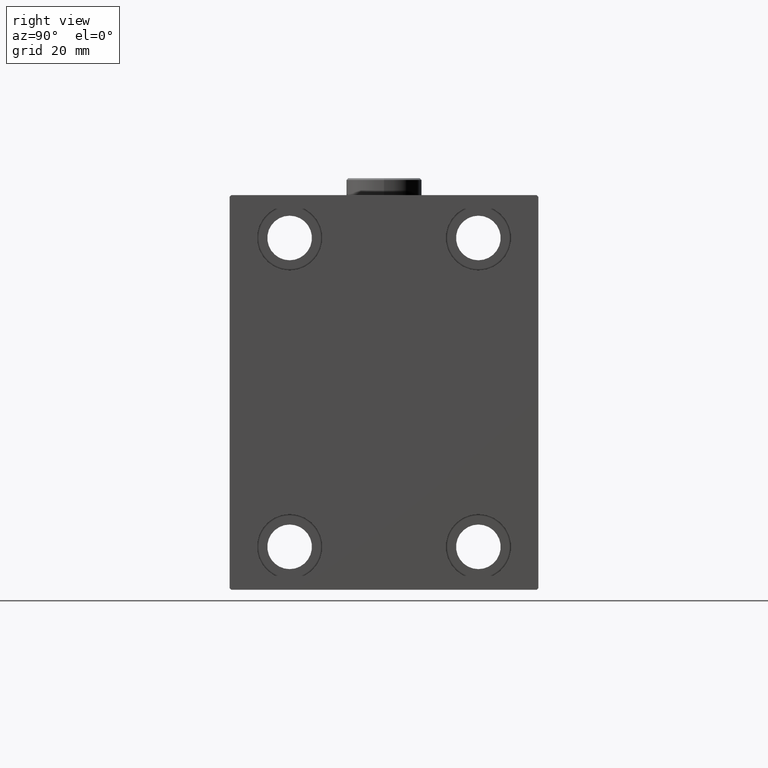
[diagram: clean part render]
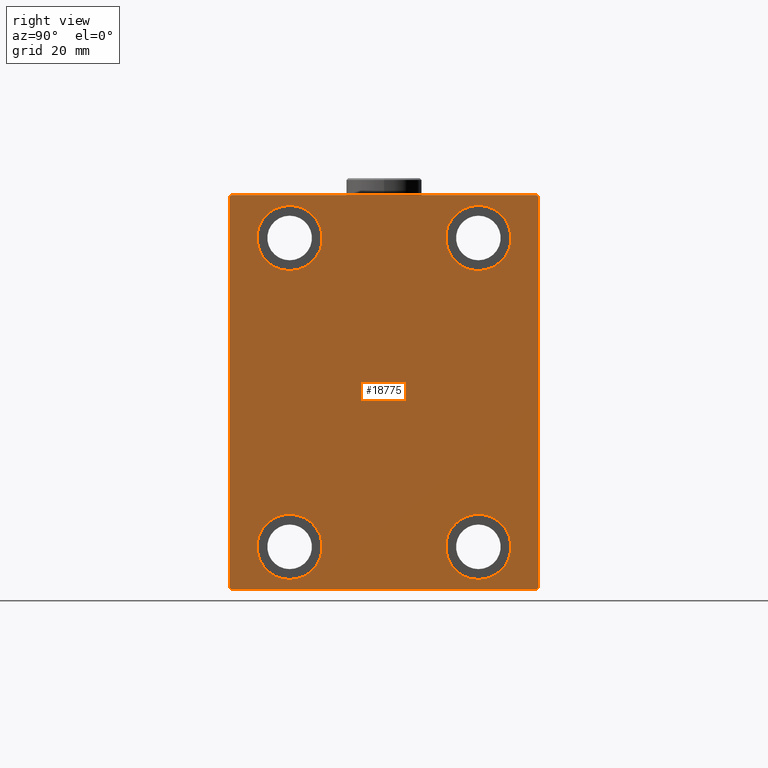
[diagram: same view with one face highlighted and labeled with its STEP entity id]
A machine part, right view. The second image highlights one B-rep face of the part: STEP entity #18775.
In plain terms, the highlighted planar face has unit normal (1, 0, 0).
Its self-contained STEP definition (entity closure, byte-faithful):
#37 = VERTEX_POINT ( 'NONE', #13288 ) ;
#253 = CARTESIAN_POINT ( 'NONE',  ( 138.0000000000000000, -27.50000000000000000, -44.99999999999998579 ) ) ;
#520 = DIRECTION ( 'NONE',  ( 0.000000000000000000, 0.000000000000000000, 1.000000000000000000 ) ) ;
#791 = VECTOR ( 'NONE', #12509, 1000.000000000000000 ) ;
#868 = EDGE_LOOP ( 'NONE', ( #32442, #12529, #12258, #16392, #17439, #33265, #3515, #4741 ) ) ;
#886 = CARTESIAN_POINT ( 'NONE',  ( 138.0000000000000000, -27.49999999999998934, 35.50000000000000711 ) ) ;
#1042 = EDGE_CURVE ( 'NONE', #5212, #41044, #6655, .T. ) ;
#1160 = EDGE_CURVE ( 'NONE', #10815, #37, #5426, .T. ) ;
#1295 = CARTESIAN_POINT ( 'NONE',  ( 138.0000000000000000, 0.000000000000000000, 0.000000000000000000 ) ) ;
#1320 = DIRECTION ( 'NONE',  ( -0.000000000000000000, 0.7071067811865474617, 0.7071067811865474617 ) ) ;
#1646 = CARTESIAN_POINT ( 'NONE',  ( 138.0000000000000000, -27.49999999999998934, 45.00000000000000711 ) ) ;
#1663 = CARTESIAN_POINT ( 'NONE',  ( 138.0000000000000000, -45.00000000000000000, 57.00000000000002132 ) ) ;
#2193 = CARTESIAN_POINT ( 'NONE',  ( 138.0000000000000000, -45.00000000000000000, -57.50000000000000711 ) ) ;
#2242 = AXIS2_PLACEMENT_3D ( 'NONE', #1646, #33478, #5780 ) ;
#2808 = DIRECTION ( 'NONE',  ( -1.000000000000000000, -0.000000000000000000, -0.000000000000000000 ) ) ;
#2958 = ORIENTED_EDGE ( 'NONE', *, *, #3651, .T. ) ;
#3515 = ORIENTED_EDGE ( 'NONE', *, *, #19408, .T. ) ;
#3651 = EDGE_CURVE ( 'NONE', #42472, #26517, #40379, .T. ) ;
#3703 = DIRECTION ( 'NONE',  ( -0.000000000000000000, -0.7071067811865474617, 0.7071067811865474617 ) ) ;
#4320 = DIRECTION ( 'NONE',  ( 0.000000000000000000, -1.000000000000000000, -1.541976423090495387E-16 ) ) ;
#4432 = CARTESIAN_POINT ( 'NONE',  ( 138.0000000000000000, -51.00000000000000000, -51.00000000000000000 ) ) ;
#4733 = VERTEX_POINT ( 'NONE', #7481 ) ;
#4741 = ORIENTED_EDGE ( 'NONE', *, *, #12905, .T. ) ;
#4891 = CARTESIAN_POINT ( 'NONE',  ( 138.0000000000000000, 27.49999999999998934, -35.49999999999998579 ) ) ;
#4967 = FACE_OUTER_BOUND ( 'NONE', #868, .T. ) ;
#5212 = VERTEX_POINT ( 'NONE', #5292 ) ;
#5292 = CARTESIAN_POINT ( 'NONE',  ( 138.0000000000000000, -27.49999999999998934, 54.50000000000000711 ) ) ;
#5353 = VECTOR ( 'NONE', #14974, 1000.000000000000114 ) ;
#5426 = LINE ( 'NONE', #2193, #791 ) ;
#5780 = DIRECTION ( 'NONE',  ( 0.000000000000000000, 0.000000000000000000, 1.000000000000000000 ) ) ;
#5947 = LINE ( 'NONE', #29763, #18843 ) ;
#5993 = AXIS2_PLACEMENT_3D ( 'NONE', #23669, #2808, #9918 ) ;
#6216 = VECTOR ( 'NONE', #1320, 1000.000000000000114 ) ;
#6655 = CIRCLE ( 'NONE', #26409, 9.500000000000001776 ) ;
#7481 = CARTESIAN_POINT ( 'NONE',  ( 138.0000000000000000, -27.50000000000000000, -35.49999999999998579 ) ) ;
#7945 = FACE_BOUND ( 'NONE', #21491, .T. ) ;
#8405 = FACE_BOUND ( 'NONE', #14805, .T. ) ;
#9313 = EDGE_CURVE ( 'NONE', #31274, #29109, #17818, .T. ) ;
#9918 = DIRECTION ( 'NONE',  ( 0.000000000000000000, 0.000000000000000000, 1.000000000000000000 ) ) ;
#10126 = LINE ( 'NONE', #20659, #42077 ) ;
#10241 = ORIENTED_EDGE ( 'NONE', *, *, #26696, .T. ) ;
#10278 = ORIENTED_EDGE ( 'NONE', *, *, #31887, .T. ) ;
#10286 = CIRCLE ( 'NONE', #2242, 9.500000000000001776 ) ;
#10438 = CARTESIAN_POINT ( 'NONE',  ( 138.0000000000000000, 27.50000000000001066, 35.50000000000000711 ) ) ;
#10815 = VERTEX_POINT ( 'NONE', #44937 ) ;
#10937 = VECTOR ( 'NONE', #4320, 1000.000000000000000 ) ;
#11028 = DIRECTION ( 'NONE',  ( -1.000000000000000000, -0.000000000000000000, -0.000000000000000000 ) ) ;
#11391 = DIRECTION ( 'NONE',  ( 1.000000000000000000, 0.000000000000000000, 0.000000000000000000 ) ) ;
#11415 = LINE ( 'NONE', #32251, #6216 ) ;
#12214 = EDGE_CURVE ( 'NONE', #37, #22952, #11415, .T. ) ;
#12258 = ORIENTED_EDGE ( 'NONE', *, *, #38434, .T. ) ;
#12509 = DIRECTION ( 'NONE',  ( 0.000000000000000000, 1.000000000000000000, 0.000000000000000000 ) ) ;
#12529 = ORIENTED_EDGE ( 'NONE', *, *, #12875, .T. ) ;
#12789 = VERTEX_POINT ( 'NONE', #1663 ) ;
#12875 = EDGE_CURVE ( 'NONE', #22469, #12789, #20210, .T. ) ;
#12905 = EDGE_CURVE ( 'NONE', #18509, #42936, #10126, .T. ) ;
#13288 = CARTESIAN_POINT ( 'NONE',  ( 138.0000000000000000, 44.49999999999998579, -57.50000000000000711 ) ) ;
#13812 = EDGE_CURVE ( 'NONE', #43500, #4733, #25191, .T. ) ;
#14239 = DIRECTION ( 'NONE',  ( 0.000000000000000000, 0.000000000000000000, 1.000000000000000000 ) ) ;
#14490 = ORIENTED_EDGE ( 'NONE', *, *, #9313, .T. ) ;
#14805 = EDGE_LOOP ( 'NONE', ( #10278, #44395 ) ) ;
#14974 = DIRECTION ( 'NONE',  ( -0.000000000000000000, 0.7071067811865474617, -0.7071067811865474617 ) ) ;
#15739 = VECTOR ( 'NONE', #38067, 1000.000000000000114 ) ;
#15786 = CARTESIAN_POINT ( 'NONE',  ( 138.0000000000000000, 45.00000000000000000, 56.99999999999997868 ) ) ;
#15881 = AXIS2_PLACEMENT_3D ( 'NONE', #1295, #11391, #32898 ) ;
#15907 = CARTESIAN_POINT ( 'NONE',  ( 138.0000000000000000, 45.00000000000001421, -57.00000000000000711 ) ) ;
#16392 = ORIENTED_EDGE ( 'NONE', *, *, #42388, .T. ) ;
#16495 = AXIS2_PLACEMENT_3D ( 'NONE', #26591, #40124, #40579 ) ;
#16772 = ORIENTED_EDGE ( 'NONE', *, *, #13812, .T. ) ;
#17439 = ORIENTED_EDGE ( 'NONE', *, *, #1160, .T. ) ;
#17818 = CIRCLE ( 'NONE', #23698, 9.500000000000001776 ) ;
#18148 = CARTESIAN_POINT ( 'NONE',  ( 138.0000000000000000, 27.49999999999998934, -44.99999999999998579 ) ) ;
#18509 = VERTEX_POINT ( 'NONE', #15786 ) ;
#18775 = ADVANCED_FACE ( 'NONE', ( #42779, #8405, #21699, #7945, #4967 ), #25817, .T. ) ;
#18843 = VECTOR ( 'NONE', #43743, 1000.000000000000000 ) ;
#19408 = EDGE_CURVE ( 'NONE', #22952, #18509, #5947, .T. ) ;
#20210 = LINE ( 'NONE', #34175, #15739 ) ;
#20403 = CARTESIAN_POINT ( 'NONE',  ( 138.0000000000000000, 27.49999999999998934, -44.99999999999998579 ) ) ;
#20659 = CARTESIAN_POINT ( 'NONE',  ( 138.0000000000000000, 51.00000000000000000, 51.00000000000000000 ) ) ;
#21276 = CARTESIAN_POINT ( 'NONE',  ( 138.0000000000000000, -45.00000000000000000, -57.00000000000000711 ) ) ;
#21469 = DIRECTION ( 'NONE',  ( 0.000000000000000000, 0.000000000000000000, 1.000000000000000000 ) ) ;
#21491 = EDGE_LOOP ( 'NONE', ( #16772, #10241 ) ) ;
#21699 = FACE_BOUND ( 'NONE', #31301, .T. ) ;
#21863 = CIRCLE ( 'NONE', #41626, 9.500000000000001776 ) ;
#22469 = VERTEX_POINT ( 'NONE', #24188 ) ;
#22952 = VERTEX_POINT ( 'NONE', #15907 ) ;
#23061 = CARTESIAN_POINT ( 'NONE',  ( 138.0000000000000000, 27.50000000000001066, 45.00000000000000711 ) ) ;
#23358 = VERTEX_POINT ( 'NONE', #21276 ) ;
#23610 = AXIS2_PLACEMENT_3D ( 'NONE', #20403, #30936, #30270 ) ;
#23669 = CARTESIAN_POINT ( 'NONE',  ( 138.0000000000000000, 27.50000000000001066, 45.00000000000000711 ) ) ;
#23698 = AXIS2_PLACEMENT_3D ( 'NONE', #23061, #40475, #33575 ) ;
#24188 = CARTESIAN_POINT ( 'NONE',  ( 138.0000000000000000, -44.50000000000000000, 57.49999999999999289 ) ) ;
#24319 = CIRCLE ( 'NONE', #23610, 9.500000000000001776 ) ;
#25191 = CIRCLE ( 'NONE', #16495, 9.500000000000001776 ) ;
#25287 = LINE ( 'NONE', #4432, #5353 ) ;
#25817 = PLANE ( 'NONE',  #15881 ) ;
#26409 = AXIS2_PLACEMENT_3D ( 'NONE', #38876, #41874, #21469 ) ;
#26443 = CIRCLE ( 'NONE', #5993, 9.500000000000001776 ) ;
#26517 = VERTEX_POINT ( 'NONE', #33039 ) ;
#26591 = CARTESIAN_POINT ( 'NONE',  ( 138.0000000000000000, -27.50000000000000000, -44.99999999999998579 ) ) ;
#26696 = EDGE_CURVE ( 'NONE', #4733, #43500, #21863, .T. ) ;
#28142 = LINE ( 'NONE', #39143, #10937 ) ;
#28893 = EDGE_CURVE ( 'NONE', #42936, #22469, #28142, .T. ) ;
#29109 = VERTEX_POINT ( 'NONE', #40955 ) ;
#29763 = CARTESIAN_POINT ( 'NONE',  ( 138.0000000000000000, 45.00000000000001421, -57.50000000000000711 ) ) ;
#30270 = DIRECTION ( 'NONE',  ( 0.000000000000000000, 0.000000000000000000, 1.000000000000000000 ) ) ;
#30936 = DIRECTION ( 'NONE',  ( -1.000000000000000000, -0.000000000000000000, -0.000000000000000000 ) ) ;
#30943 = VECTOR ( 'NONE', #44652, 1000.000000000000000 ) ;
#31090 = EDGE_LOOP ( 'NONE', ( #43492, #2958 ) ) ;
#31274 = VERTEX_POINT ( 'NONE', #10438 ) ;
#31301 = EDGE_LOOP ( 'NONE', ( #14490, #34904 ) ) ;
#31887 = EDGE_CURVE ( 'NONE', #41044, #5212, #10286, .T. ) ;
#32251 = CARTESIAN_POINT ( 'NONE',  ( 138.0000000000000000, 51.00000000000000711, -51.00000000000000711 ) ) ;
#32442 = ORIENTED_EDGE ( 'NONE', *, *, #28893, .T. ) ;
#32898 = DIRECTION ( 'NONE',  ( 0.000000000000000000, 0.000000000000000000, -1.000000000000000000 ) ) ;
#33039 = CARTESIAN_POINT ( 'NONE',  ( 138.0000000000000000, 27.49999999999998934, -54.49999999999998579 ) ) ;
#33265 = ORIENTED_EDGE ( 'NONE', *, *, #12214, .T. ) ;
#33478 = DIRECTION ( 'NONE',  ( -1.000000000000000000, -0.000000000000000000, -0.000000000000000000 ) ) ;
#33575 = DIRECTION ( 'NONE',  ( 0.000000000000000000, 0.000000000000000000, 1.000000000000000000 ) ) ;
#34107 = LINE ( 'NONE', #37776, #30943 ) ;
#34164 = EDGE_CURVE ( 'NONE', #29109, #31274, #26443, .T. ) ;
#34175 = CARTESIAN_POINT ( 'NONE',  ( 138.0000000000000000, -51.00000000000000711, 51.00000000000000711 ) ) ;
#34904 = ORIENTED_EDGE ( 'NONE', *, *, #34164, .T. ) ;
#35254 = AXIS2_PLACEMENT_3D ( 'NONE', #18148, #42681, #520 ) ;
#36097 = CARTESIAN_POINT ( 'NONE',  ( 138.0000000000000000, 44.50000000000000000, 57.50000000000000711 ) ) ;
#37435 = EDGE_CURVE ( 'NONE', #26517, #42472, #24319, .T. ) ;
#37776 = CARTESIAN_POINT ( 'NONE',  ( 138.0000000000000000, -45.00000000000000000, 57.49999999999999289 ) ) ;
#38067 = DIRECTION ( 'NONE',  ( 0.000000000000000000, -0.7071067811865474617, -0.7071067811865474617 ) ) ;
#38434 = EDGE_CURVE ( 'NONE', #12789, #23358, #34107, .T. ) ;
#38531 = CARTESIAN_POINT ( 'NONE',  ( 138.0000000000000000, -27.50000000000000000, -54.49999999999998579 ) ) ;
#38876 = CARTESIAN_POINT ( 'NONE',  ( 138.0000000000000000, -27.49999999999998934, 45.00000000000000711 ) ) ;
#39143 = CARTESIAN_POINT ( 'NONE',  ( 138.0000000000000000, 45.00000000000000000, 57.50000000000000711 ) ) ;
#40124 = DIRECTION ( 'NONE',  ( -1.000000000000000000, -0.000000000000000000, -0.000000000000000000 ) ) ;
#40379 = CIRCLE ( 'NONE', #35254, 9.500000000000001776 ) ;
#40475 = DIRECTION ( 'NONE',  ( -1.000000000000000000, -0.000000000000000000, -0.000000000000000000 ) ) ;
#40579 = DIRECTION ( 'NONE',  ( 0.000000000000000000, 0.000000000000000000, 1.000000000000000000 ) ) ;
#40955 = CARTESIAN_POINT ( 'NONE',  ( 138.0000000000000000, 27.50000000000001066, 54.50000000000000711 ) ) ;
#41044 = VERTEX_POINT ( 'NONE', #886 ) ;
#41626 = AXIS2_PLACEMENT_3D ( 'NONE', #253, #11028, #14239 ) ;
#41874 = DIRECTION ( 'NONE',  ( -1.000000000000000000, -0.000000000000000000, -0.000000000000000000 ) ) ;
#42077 = VECTOR ( 'NONE', #3703, 1000.000000000000114 ) ;
#42388 = EDGE_CURVE ( 'NONE', #23358, #10815, #25287, .T. ) ;
#42472 = VERTEX_POINT ( 'NONE', #4891 ) ;
#42681 = DIRECTION ( 'NONE',  ( -1.000000000000000000, -0.000000000000000000, -0.000000000000000000 ) ) ;
#42779 = FACE_BOUND ( 'NONE', #31090, .T. ) ;
#42936 = VERTEX_POINT ( 'NONE', #36097 ) ;
#43492 = ORIENTED_EDGE ( 'NONE', *, *, #37435, .T. ) ;
#43500 = VERTEX_POINT ( 'NONE', #38531 ) ;
#43743 = DIRECTION ( 'NONE',  ( 0.000000000000000000, -1.206764157201257045E-16, 1.000000000000000000 ) ) ;
#44395 = ORIENTED_EDGE ( 'NONE', *, *, #1042, .T. ) ;
#44652 = DIRECTION ( 'NONE',  ( 0.000000000000000000, 0.000000000000000000, -1.000000000000000000 ) ) ;
#44937 = CARTESIAN_POINT ( 'NONE',  ( 138.0000000000000000, -44.50000000000000000, -57.50000000000000711 ) ) ;